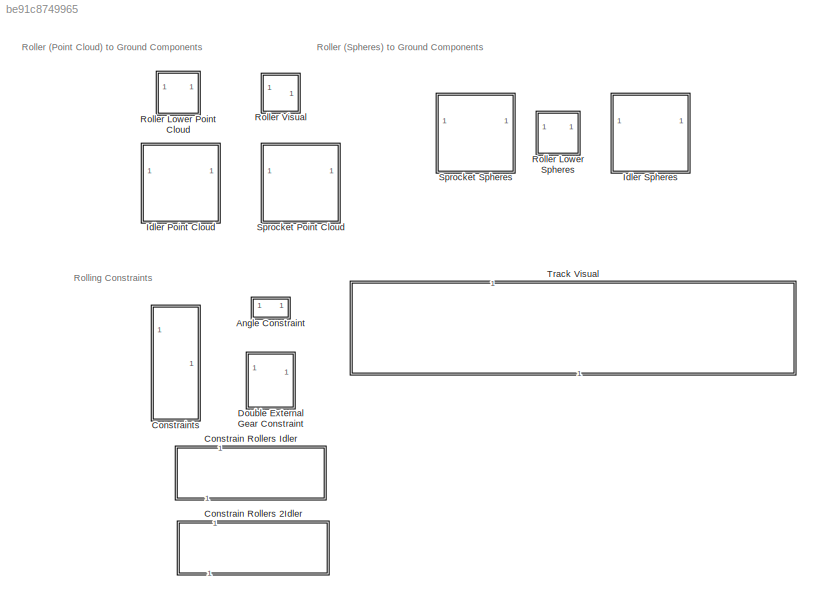
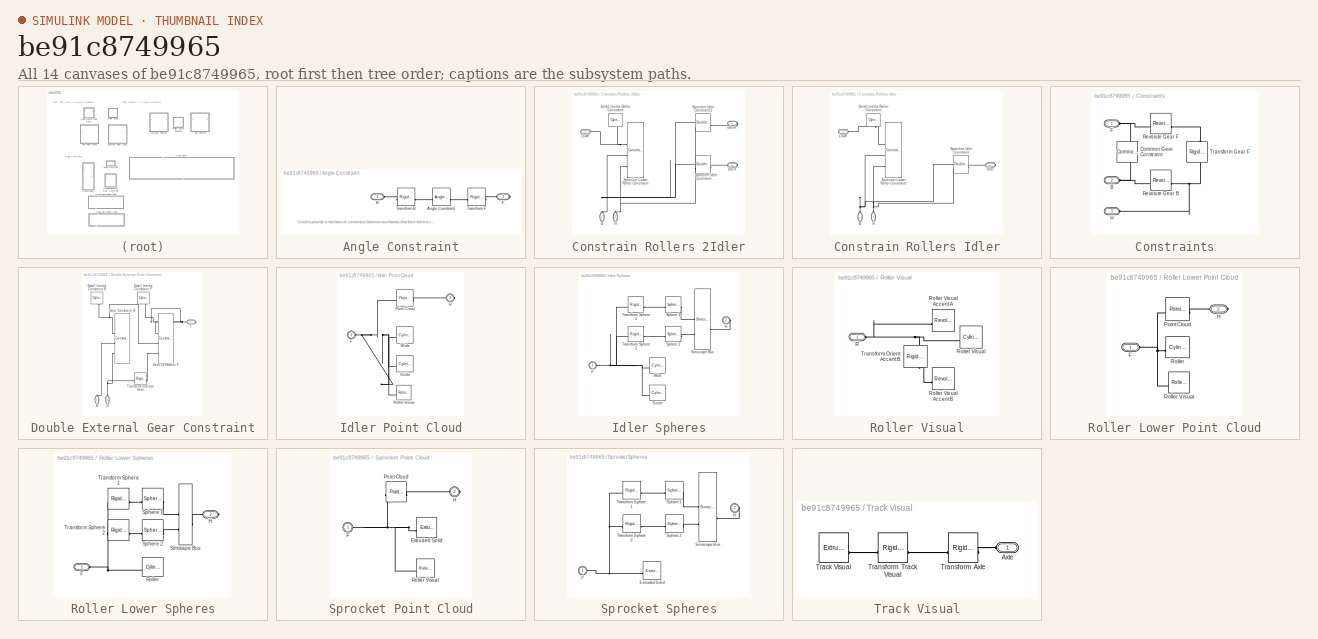
[diagram: thumbnail index - all 14 canvases of the model, root first then tree order]
MODEL slx_be91c8749965
KIND library
CONFIG SolverName = VariableStepAuto
BLOCK [SubSystem] Angle Constraint
BLOCK [Reference] Angle Constraint/Angle Constraint  REF=sm_lib/Constraints/Angle
Constraint
  SourceBlock = sm_lib/Constraints/Angle\nConstraint
  SourceType = Angle\nConstraint
BLOCK [PMIOPort] Angle Constraint/B
  Side = Left
BLOCK [PMIOPort] Angle Constraint/F
  Port = 2
  Side = Right
BLOCK [Reference] Angle Constraint/Transform B  REF=sm_lib/Frames and
Transforms/Rigid
Transform
  SourceBlock = sm_lib/Frames and\nTransforms/Rigid\nTransform
  SourceType = Rigid\nTransform
BLOCK [Reference] Angle Constraint/Transform F  REF=sm_lib/Frames and
Transforms/Rigid
Transform
  SourceBlock = sm_lib/Frames and\nTransforms/Rigid\nTransform
  SourceType = Rigid\nTransform
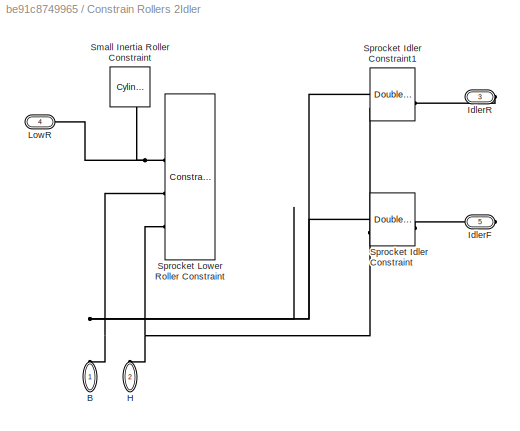
BLOCK [SubSystem] Constrain Rollers 2Idler
  NameLocation = left
BLOCK [PMIOPort] Constrain Rollers 2Idler/B
  NameLocation = right
  Side = Left
BLOCK [PMIOPort] Constrain Rollers 2Idler/H
  NameLocation = right
  Port = 2
  Side = Left
BLOCK [PMIOPort] Constrain Rollers 2Idler/IdlerF
  Port = 5
  Side = Right
BLOCK [PMIOPort] Constrain Rollers 2Idler/IdlerR
  Port = 3
  Side = Right
BLOCK [PMIOPort] Constrain Rollers 2Idler/LowR
  Port = 4
  Side = Right
BLOCK [Reference] Constrain Rollers 2Idler/Small Inertia Roller Constraint  REF=sm_lib/Body Elements/Cylindrical Solid
  NameLocation = left
  SourceBlock = sm_lib/Body Elements/Cylindrical Solid
  SourceType = Cylindrical Solid
BLOCK [Reference] Constrain Rollers 2Idler/Sprocket Idler Constraint  REF=$bdroot/Double External
Gear Constraint
  LibrarySourceBlock = sm_excv_track_abstract_lib/Double External Constraint
  SourceBlock = $bdroot/Double External\nGear Constraint
  SourceType = Constrain Sprocket, Lower Rollers, and Idler
BLOCK [Reference] Constrain Rollers 2Idler/Sprocket Idler Constraint1  REF=$bdroot/Double External
Gear Constraint
  LibrarySourceBlock = sm_excv_track_abstract_lib/Double External Constraint
  SourceBlock = $bdroot/Double External\nGear Constraint
  SourceType = Constrain Sprocket, Lower Rollers, and Idler
BLOCK [Reference] Constrain Rollers 2Idler/Sprocket Lower Roller Constraint  REF=$bdroot/Constraints
  SourceBlock = $bdroot/Constraints
  SourceType = Common Gear Assembly Constraints
BLOCK [SubSystem] Constrain Rollers Idler
  NameLocation = left
BLOCK [PMIOPort] Constrain Rollers Idler/B
  NameLocation = right
  Side = Left
BLOCK [PMIOPort] Constrain Rollers Idler/H
  NameLocation = right
  Port = 3
  Side = Left
BLOCK [PMIOPort] Constrain Rollers Idler/Idler
  Port = 4
  Side = Right
BLOCK [PMIOPort] Constrain Rollers Idler/LowR
  Port = 2
  Side = Right
BLOCK [Reference] Constrain Rollers Idler/Small Inertia Roller Constraint  REF=sm_lib/Body Elements/Cylindrical Solid
  NameLocation = left
  SourceBlock = sm_lib/Body Elements/Cylindrical Solid
  SourceType = Cylindrical Solid
BLOCK [Reference] Constrain Rollers Idler/Sprocket Idler Constraint  REF=$bdroot/Double External
Gear Constraint
  LibrarySourceBlock = sm_excv_track_abstract_lib/Double External Constraint
  SourceBlock = $bdroot/Double External\nGear Constraint
  SourceType = Constrain Sprocket, Lower Rollers, and Idler
BLOCK [Reference] Constrain Rollers Idler/Sprocket Lower Roller Constraint  REF=$bdroot/Constraints
  SourceBlock = $bdroot/Constraints
  SourceType = Common Gear Assembly Constraints
BLOCK [SubSystem] Constraints
BLOCK [PMIOPort] Constraints/B
  Port = 2
  Side = Left
BLOCK [Reference] Constraints/Common Gear Constraint  REF=sm_lib/Gears and
Couplings/Gears/Common Gear
Constraint
  NameLocation = right
  SourceBlock = sm_lib/Gears and\nCouplings/Gears/Common Gear\nConstraint
  SourceType = Common Gear\nConstraint
BLOCK [PMIOPort] Constraints/F
  Side = Left
BLOCK [PMIOPort] Constraints/H
  Port = 3
  Side = Left
BLOCK [Reference] Constraints/Revolute Gear B  REF=sm_lib/Joints/Revolute Joint
  SourceBlock = sm_lib/Joints/Revolute Joint
  SourceType = Revolute Joint
BLOCK [Reference] Constraints/Revolute Gear F  REF=sm_lib/Joints/Revolute Joint
  NameLocation = top
  SourceBlock = sm_lib/Joints/Revolute Joint
  SourceType = Revolute Joint
BLOCK [Reference] Constraints/Transform Gear F  REF=sm_lib/Frames and
Transforms/Rigid
Transform
  NameLocation = right
  SourceBlock = sm_lib/Frames and\nTransforms/Rigid\nTransform
  SourceType = Rigid\nTransform
BLOCK [SubSystem] Double External Gear Constraint
BLOCK [PMIOPort] Double External Gear Constraint/B
  NameLocation = right
  Port = 2
  Side = Left
BLOCK [PMIOPort] Double External Gear Constraint/F
  Side = Right
BLOCK [Reference] Double External Gear Constraint/Gear Constraint B  REF=$bdroot/Constraints
  SourceBlock = $bdroot/Constraints
  SourceType = Common Gear Assembly Constraints
BLOCK [Reference] Double External Gear Constraint/Gear Constraint F  REF=$bdroot/Constraints
  SourceBlock = $bdroot/Constraints
  SourceType = Common Gear Assembly Constraints
BLOCK [PMIOPort] Double External Gear Constraint/H
  NameLocation = right
  Port = 3
  Side = Left
BLOCK [Reference] Double External Gear Constraint/Small Inertia Constraint B  REF=sm_lib/Body Elements/Cylindrical Solid
  NameLocation = right
  SourceBlock = sm_lib/Body Elements/Cylindrical Solid
  SourceType = Cylindrical Solid
BLOCK [Reference] Double External Gear Constraint/Small Inertia Constraint F  REF=sm_lib/Body Elements/Cylindrical Solid
  NameLocation = right
  SourceBlock = sm_lib/Body Elements/Cylindrical Solid
  SourceType = Cylindrical Solid
BLOCK [Reference] Double External Gear Constraint/Transform Internal Gear  REF=sm_lib/Frames and
Transforms/Rigid
Transform
  SourceBlock = sm_lib/Frames and\nTransforms/Rigid\nTransform
  SourceType = Rigid\nTransform
BLOCK [SubSystem] Idler Point Cloud
BLOCK [PMIOPort] Idler Point Cloud/F
  Side = Left
BLOCK [Reference] Idler Point Cloud/Guide  REF=sm_lib/Body Elements/Cylindrical Solid
  SourceBlock = sm_lib/Body Elements/Cylindrical Solid
  SourceType = Cylindrical Solid
BLOCK [PMIOPort] Idler Point Cloud/H
  Port = 2
  Side = Right
BLOCK [Reference] Idler Point Cloud/Point Cloud  REF=sm_lib/Curves and Surfaces/Point Cloud
  SourceBlock = sm_lib/Curves and Surfaces/Point Cloud
  SourceType = Point Cloud
BLOCK [Reference] Idler Point Cloud/Roller Visual  REF=$bdroot/Roller
Visual
  SourceBlock = $bdroot/Roller\nVisual
  SourceType = Roller Visual Element
BLOCK [Reference] Idler Point Cloud/Wide  REF=sm_lib/Body Elements/Cylindrical Solid
  SourceBlock = sm_lib/Body Elements/Cylindrical Solid
  SourceType = Cylindrical Solid
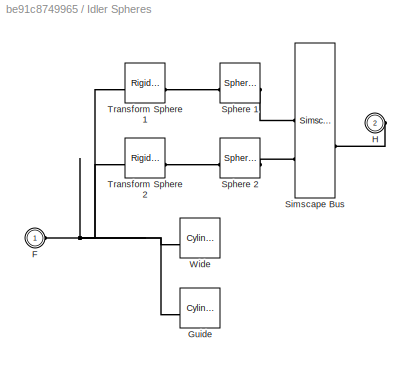
BLOCK [SubSystem] Idler Spheres
BLOCK [PMIOPort] Idler Spheres/F
  Side = Left
BLOCK [Reference] Idler Spheres/Guide  REF=sm_lib/Body Elements/Cylindrical Solid
  SourceBlock = sm_lib/Body Elements/Cylindrical Solid
  SourceType = Cylindrical Solid
BLOCK [PMIOPort] Idler Spheres/H
  Port = 2
  Side = Right
BLOCK [SimscapeBus] Idler Spheres/Simscape Bus
  HierarchyStrings = S1;S2
BLOCK [Reference] Idler Spheres/Sphere 1  REF=sm_lib/Body Elements/Spherical Solid
  SourceBlock = sm_lib/Body Elements/Spherical Solid
  SourceType = Spherical Solid
BLOCK [Reference] Idler Spheres/Sphere 2  REF=sm_lib/Body Elements/Spherical Solid
  SourceBlock = sm_lib/Body Elements/Spherical Solid
  SourceType = Spherical Solid
BLOCK [Reference] Idler Spheres/Transform Sphere 1  REF=sm_lib/Frames and
Transforms/Rigid
Transform
  SourceBlock = sm_lib/Frames and\nTransforms/Rigid\nTransform
  SourceType = Rigid\nTransform
BLOCK [Reference] Idler Spheres/Transform Sphere 2  REF=sm_lib/Frames and
Transforms/Rigid
Transform
  SourceBlock = sm_lib/Frames and\nTransforms/Rigid\nTransform
  SourceType = Rigid\nTransform
BLOCK [Reference] Idler Spheres/Wide  REF=sm_lib/Body Elements/Cylindrical Solid
  SourceBlock = sm_lib/Body Elements/Cylindrical Solid
  SourceType = Cylindrical Solid
BLOCK [SubSystem] Roller Lower Point Cloud
BLOCK [PMIOPort] Roller Lower Point Cloud/F
  Side = Left
BLOCK [PMIOPort] Roller Lower Point Cloud/H
  Port = 2
  Side = Right
BLOCK [Reference] Roller Lower Point Cloud/Point Cloud  REF=sm_lib/Curves and Surfaces/Point Cloud
  SourceBlock = sm_lib/Curves and Surfaces/Point Cloud
  SourceType = Point Cloud
BLOCK [Reference] Roller Lower Point Cloud/Roller  REF=sm_lib/Body Elements/Cylindrical Solid
  SourceBlock = sm_lib/Body Elements/Cylindrical Solid
  SourceType = Cylindrical Solid
BLOCK [Reference] Roller Lower Point Cloud/Roller Visual  REF=$bdroot/Roller
Visual
  SourceBlock = $bdroot/Roller\nVisual
  SourceType = Roller Visual Element
BLOCK [SubSystem] Roller Lower Spheres
BLOCK [PMIOPort] Roller Lower Spheres/F
  Side = Left
BLOCK [PMIOPort] Roller Lower Spheres/H
  Port = 2
  Side = Right
BLOCK [Reference] Roller Lower Spheres/Roller  REF=sm_lib/Body Elements/Cylindrical Solid
  SourceBlock = sm_lib/Body Elements/Cylindrical Solid
  SourceType = Cylindrical Solid
BLOCK [SimscapeBus] Roller Lower Spheres/Simscape Bus
  HierarchyStrings = S1;S2
BLOCK [Reference] Roller Lower Spheres/Sphere 1  REF=sm_lib/Body Elements/Spherical Solid
  SourceBlock = sm_lib/Body Elements/Spherical Solid
  SourceType = Spherical Solid
BLOCK [Reference] Roller Lower Spheres/Sphere 2  REF=sm_lib/Body Elements/Spherical Solid
  SourceBlock = sm_lib/Body Elements/Spherical Solid
  SourceType = Spherical Solid
BLOCK [Reference] Roller Lower Spheres/Transform Sphere 1  REF=sm_lib/Frames and
Transforms/Rigid
Transform
  NameLocation = top
  SourceBlock = sm_lib/Frames and\nTransforms/Rigid\nTransform
  SourceType = Rigid\nTransform
BLOCK [Reference] Roller Lower Spheres/Transform Sphere 2  REF=sm_lib/Frames and
Transforms/Rigid
Transform
  SourceBlock = sm_lib/Frames and\nTransforms/Rigid\nTransform
  SourceType = Rigid\nTransform
BLOCK [SubSystem] Roller Visual
BLOCK [PMIOPort] Roller Visual/R
  Side = Left
BLOCK [Reference] Roller Visual/Roller Visual  REF=sm_lib/Body Elements/Cylindrical Solid
  SourceBlock = sm_lib/Body Elements/Cylindrical Solid
  SourceType = Cylindrical Solid
BLOCK [Reference] Roller Visual/Roller Visual Accent A  REF=sm_lib/Body Elements/Revolved Solid
  NameLocation = top
  SourceBlock = sm_lib/Body Elements/Revolved Solid
  SourceType = Revolved Solid
BLOCK [Reference] Roller Visual/Roller Visual Accent B  REF=sm_lib/Body Elements/Revolved Solid
  SourceBlock = sm_lib/Body Elements/Revolved Solid
  SourceType = Revolved Solid
BLOCK [Reference] Roller Visual/Transform Orient Accent B  REF=sm_lib/Frames and
Transforms/Rigid
Transform
  NameLocation = left
  SourceBlock = sm_lib/Frames and\nTransforms/Rigid\nTransform
  SourceType = Rigid\nTransform
BLOCK [SubSystem] Sprocket Point Cloud
BLOCK [Reference] Sprocket Point Cloud/Extruded Solid  REF=sm_lib/Body Elements/Extruded Solid
  SourceBlock = sm_lib/Body Elements/Extruded Solid
  SourceType = Extruded Solid
BLOCK [PMIOPort] Sprocket Point Cloud/F
  Side = Left
BLOCK [PMIOPort] Sprocket Point Cloud/H
  Port = 2
  Side = Right
BLOCK [Reference] Sprocket Point Cloud/Point Cloud  REF=sm_lib/Curves and Surfaces/Point Cloud
  SourceBlock = sm_lib/Curves and Surfaces/Point Cloud
  SourceType = Point Cloud
BLOCK [Reference] Sprocket Point Cloud/Roller Visual  REF=$bdroot/Roller
Visual
  SourceBlock = $bdroot/Roller\nVisual
  SourceType = Roller Visual Element
BLOCK [SubSystem] Sprocket Spheres
BLOCK [Reference] Sprocket Spheres/Extruded Solid  REF=sm_lib/Body Elements/Extruded Solid
  SourceBlock = sm_lib/Body Elements/Extruded Solid
  SourceType = Extruded Solid
BLOCK [PMIOPort] Sprocket Spheres/F
  Side = Left
BLOCK [PMIOPort] Sprocket Spheres/H
  Port = 2
  Side = Right
BLOCK [SimscapeBus] Sprocket Spheres/Simscape Bus
  HierarchyStrings = S1;S2
BLOCK [Reference] Sprocket Spheres/Sphere 1  REF=sm_lib/Body Elements/Spherical Solid
  SourceBlock = sm_lib/Body Elements/Spherical Solid
  SourceType = Spherical Solid
BLOCK [Reference] Sprocket Spheres/Sphere 2  REF=sm_lib/Body Elements/Spherical Solid
  SourceBlock = sm_lib/Body Elements/Spherical Solid
  SourceType = Spherical Solid
BLOCK [Reference] Sprocket Spheres/Transform Sphere 1  REF=sm_lib/Frames and
Transforms/Rigid
Transform
  SourceBlock = sm_lib/Frames and\nTransforms/Rigid\nTransform
  SourceType = Rigid\nTransform
BLOCK [Reference] Sprocket Spheres/Transform Sphere 2  REF=sm_lib/Frames and
Transforms/Rigid
Transform
  SourceBlock = sm_lib/Frames and\nTransforms/Rigid\nTransform
  SourceType = Rigid\nTransform
BLOCK [SubSystem] Track Visual
BLOCK [PMIOPort] Track Visual/Axle
  Side = Left
BLOCK [Reference] Track Visual/Track Visual  REF=sm_lib/Body Elements/Extruded Solid
  SourceBlock = sm_lib/Body Elements/Extruded Solid
  SourceType = Extruded Solid
BLOCK [Reference] Track Visual/Transform Axle  REF=sm_lib/Frames and
Transforms/Rigid
Transform
  SourceBlock = sm_lib/Frames and\nTransforms/Rigid\nTransform
  SourceType = Rigid\nTransform
BLOCK [Reference] Track Visual/Transform Track Visual  REF=sm_lib/Frames and
Transforms/Rigid
Transform
  SourceBlock = sm_lib/Frames and\nTransforms/Rigid\nTransform
  SourceType = Rigid\nTransform
ANNOTATION (root): Roller (Point Cloud) to Ground Components
ANNOTATION (root): Roller (Spheres) to Ground Components
ANNOTATION (root): Rolling Constraints
ANNOTATION Angle Constraint: Used to provide a mechanical connection between two frames that force them to turn at the same speed about their z-axis. Z axes must be constrained to be parallel .
PLINE Angle Constraint/Angle Constraint:LConn1 -- Angle Constraint/Transform B:RConn1
PLINE Angle Constraint/Angle Constraint:RConn1 -- Angle Constraint/Transform F:RConn1
PLINE Angle Constraint/B:RConn1 -- Angle Constraint/Transform B:LConn1
PLINE Angle Constraint/F:RConn1 -- Angle Constraint/Transform F:LConn1
PNET net1: Constrain Rollers 2Idler/B:RConn1 -- Constrain Rollers 2Idler/Sprocket Idler Constraint1:LConn1 -- Constrain Rollers 2Idler/Sprocket Idler Constraint:LConn1 -- Constrain Rollers 2Idler/Sprocket Lower Roller Constraint:LConn2
PNET net2: Constrain Rollers 2Idler/H:RConn1 -- Constrain Rollers 2Idler/Sprocket Idler Constraint1:LConn2 -- Constrain Rollers 2Idler/Sprocket Idler Constraint:LConn2 -- Constrain Rollers 2Idler/Sprocket Lower Roller Constraint:LConn3
PLINE Constrain Rollers 2Idler/IdlerF:RConn1 -- Constrain Rollers 2Idler/Sprocket Idler Constraint:RConn1
PLINE Constrain Rollers 2Idler/IdlerR:RConn1 -- Constrain Rollers 2Idler/Sprocket Idler Constraint1:RConn1
PNET net3: Constrain Rollers 2Idler/LowR:RConn1 -- Constrain Rollers 2Idler/Small Inertia Roller Constraint:RConn1 -- Constrain Rollers 2Idler/Sprocket Lower Roller Constraint:LConn1
PNET net4: Constrain Rollers Idler/B:RConn1 -- Constrain Rollers Idler/Sprocket Idler Constraint:LConn1 -- Constrain Rollers Idler/Sprocket Lower Roller Constraint:LConn2
PNET net5: Constrain Rollers Idler/H:RConn1 -- Constrain Rollers Idler/Sprocket Idler Constraint:LConn2 -- Constrain Rollers Idler/Sprocket Lower Roller Constraint:LConn3
PLINE Constrain Rollers Idler/Idler:RConn1 -- Constrain Rollers Idler/Sprocket Idler Constraint:RConn1
PNET net6: Constrain Rollers Idler/LowR:RConn1 -- Constrain Rollers Idler/Small Inertia Roller Constraint:RConn1 -- Constrain Rollers Idler/Sprocket Lower Roller Constraint:LConn1
PLINE Double External Gear Constraint/B:RConn1 -- Double External Gear Constraint/Gear Constraint B:LConn2
PNET net7: Double External Gear Constraint/F:RConn1 -- Double External Gear Constraint/Gear Constraint F:LConn1 -- Double External Gear Constraint/Small Inertia Constraint F:RConn1
PNET net8: Double External Gear Constraint/Gear Constraint B:LConn1 -- Double External Gear Constraint/Gear Constraint F:LConn2 -- Double External Gear Constraint/Small Inertia Constraint B:RConn1
PNET net9: Double External Gear Constraint/Gear Constraint B:LConn3 -- Double External Gear Constraint/H:RConn1 -- Double External Gear Constraint/Transform Internal Gear:LConn1
PLINE Double External Gear Constraint/Gear Constraint F:LConn3 -- Double External Gear Constraint/Transform Internal Gear:RConn1
PNET net10: Idler Point Cloud/F:RConn1 -- Idler Point Cloud/Guide:RConn1 -- Idler Point Cloud/Point Cloud:LConn1 -- Idler Point Cloud/Roller Visual:LConn1 -- Idler Point Cloud/Wide:RConn1
PLINE Idler Point Cloud/H:RConn1 -- Idler Point Cloud/Point Cloud:RConn1
PNET net11: Idler Spheres/F:RConn1 -- Idler Spheres/Guide:RConn1 -- Idler Spheres/Transform Sphere 1:LConn1 -- Idler Spheres/Transform Sphere 2:LConn1 -- Idler Spheres/Wide:RConn1
PLINE Idler Spheres/H:RConn1 -- Idler Spheres/Simscape Bus:RConn1
PLINE Idler Spheres/Simscape Bus:LConn1 -- Idler Spheres/Sphere 1:LConn1
PLINE Idler Spheres/Simscape Bus:LConn2 -- Idler Spheres/Sphere 2:LConn1
PLINE Idler Spheres/Sphere 1:RConn1 -- Idler Spheres/Transform Sphere 1:RConn1
PLINE Idler Spheres/Sphere 2:RConn1 -- Idler Spheres/Transform Sphere 2:RConn1
PNET net12: Roller Lower Point Cloud/F:RConn1 -- Roller Lower Point Cloud/Point Cloud:LConn1 -- Roller Lower Point Cloud/Roller Visual:LConn1 -- Roller Lower Point Cloud/Roller:RConn1
PLINE Roller Lower Point Cloud/H:RConn1 -- Roller Lower Point Cloud/Point Cloud:RConn1
PNET net13: Roller Lower Spheres/F:RConn1 -- Roller Lower Spheres/Roller:RConn1 -- Roller Lower Spheres/Transform Sphere 1:LConn1 -- Roller Lower Spheres/Transform Sphere 2:LConn1
PLINE Roller Lower Spheres/H:RConn1 -- Roller Lower Spheres/Simscape Bus:RConn1
PLINE Roller Lower Spheres/Simscape Bus:LConn1 -- Roller Lower Spheres/Sphere 1:LConn1
PLINE Roller Lower Spheres/Simscape Bus:LConn2 -- Roller Lower Spheres/Sphere 2:LConn1
PLINE Roller Lower Spheres/Sphere 1:RConn1 -- Roller Lower Spheres/Transform Sphere 1:RConn1
PLINE Roller Lower Spheres/Sphere 2:RConn1 -- Roller Lower Spheres/Transform Sphere 2:RConn1
PNET net14: Roller Visual/R:RConn1 -- Roller Visual/Roller Visual Accent A:RConn1 -- Roller Visual/Roller Visual:RConn1 -- Roller Visual/Transform Orient Accent B:LConn1
PLINE Roller Visual/Roller Visual Accent B:RConn1 -- Roller Visual/Transform Orient Accent B:RConn1
PNET net15: Sprocket Point Cloud/Extruded Solid:RConn1 -- Sprocket Point Cloud/F:RConn1 -- Sprocket Point Cloud/Point Cloud:LConn1 -- Sprocket Point Cloud/Roller Visual:LConn1
PLINE Sprocket Point Cloud/H:RConn1 -- Sprocket Point Cloud/Point Cloud:RConn1
PNET net16: Sprocket Spheres/Extruded Solid:RConn1 -- Sprocket Spheres/F:RConn1 -- Sprocket Spheres/Transform Sphere 1:LConn1 -- Sprocket Spheres/Transform Sphere 2:LConn1
PLINE Sprocket Spheres/H:RConn1 -- Sprocket Spheres/Simscape Bus:RConn1
PLINE Sprocket Spheres/Simscape Bus:LConn1 -- Sprocket Spheres/Sphere 1:LConn1
PLINE Sprocket Spheres/Simscape Bus:LConn2 -- Sprocket Spheres/Sphere 2:LConn1
PLINE Sprocket Spheres/Sphere 1:RConn1 -- Sprocket Spheres/Transform Sphere 1:RConn1
PLINE Sprocket Spheres/Sphere 2:RConn1 -- Sprocket Spheres/Transform Sphere 2:RConn1
PLINE Track Visual/Axle:RConn1 -- Track Visual/Transform Axle:RConn1
PLINE Track Visual/Track Visual:RConn1 -- Track Visual/Transform Track Visual:RConn1
PLINE Track Visual/Transform Axle:LConn1 -- Track Visual/Transform Track Visual:LConn1
note: PNET lines group multi-terminal physical nets as a canonical sorted terminal list (undirected conserving connections); 2-terminal nets keep the pairwise PLINE form
